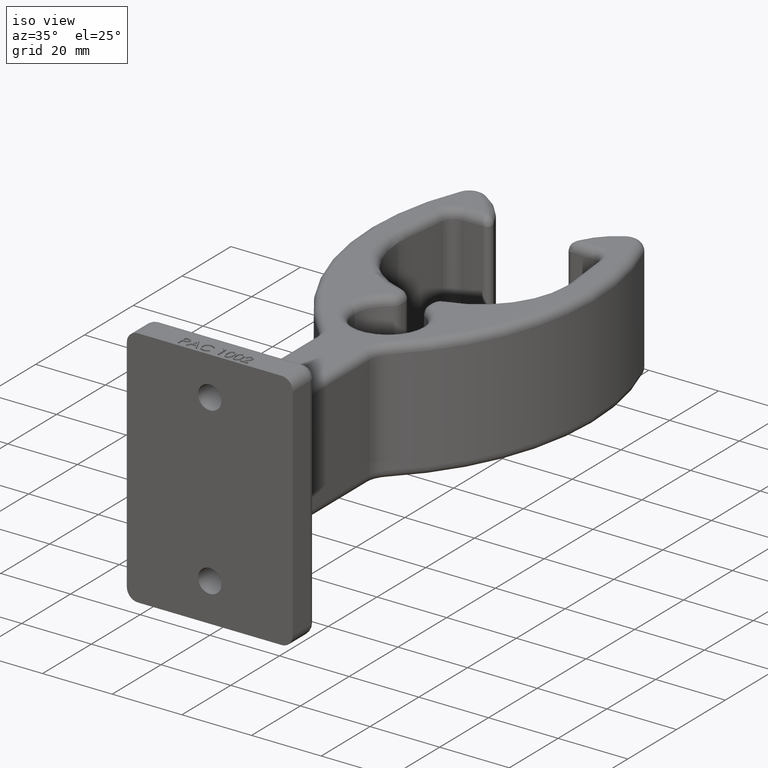
[diagram: clean part render]
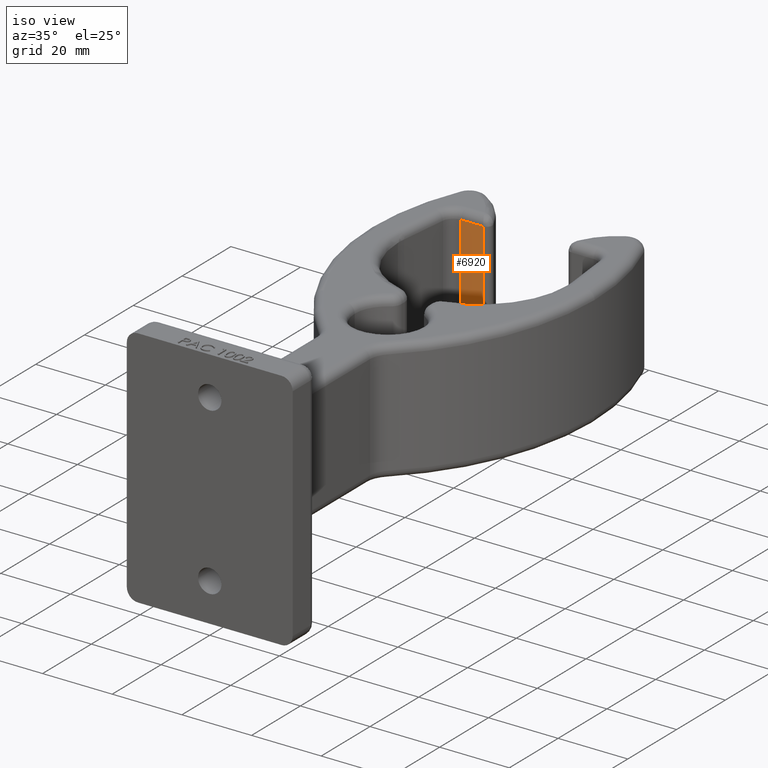
[diagram: same view with one face highlighted and labeled with its STEP entity id]
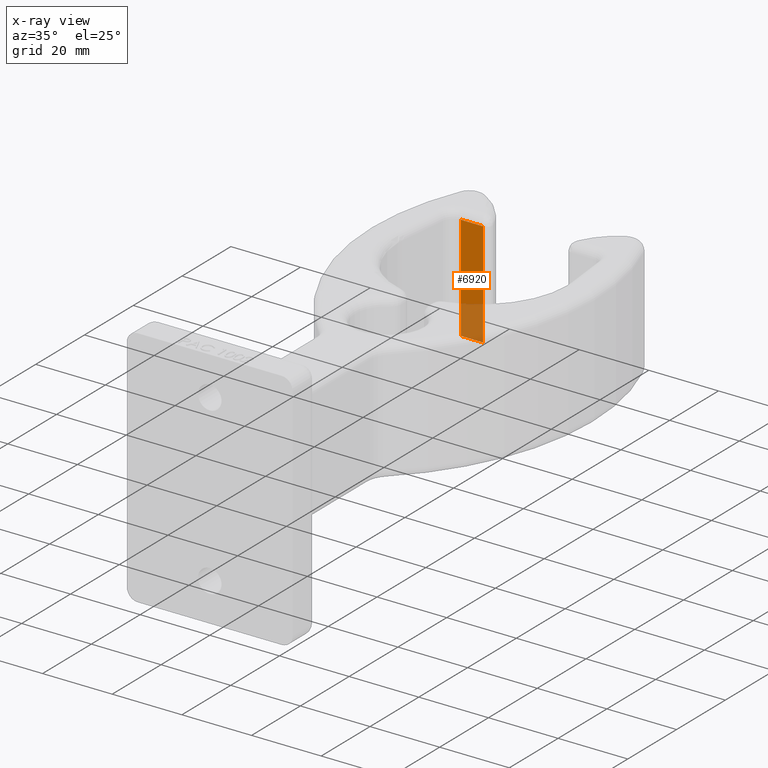
[diagram: x-ray of the same camera — body ghosted, the highlighted face saturated]
A machine part, iso view. The second image highlights one B-rep face of the part: STEP entity #6920.
The next image is the same camera in x-ray: the body ghosted, the highlighted face saturated — about 30% of this face is hidden behind the body in this view.
In plain terms, the highlighted planar face has unit normal (0, 1, -0).
Its self-contained STEP definition (entity closure, byte-faithful):
#550 = VERTEX_POINT ( 'NONE', #3985 ) ;
#969 = VECTOR ( 'NONE', #2479, 39.37007874015748100 ) ;
#1422 = ORIENTED_EDGE ( 'NONE', *, *, #6257, .F. ) ;
#1751 = PLANE ( 'NONE',  #13043 ) ;
#2068 = CARTESIAN_POINT ( 'NONE',  ( -0.7500000000000003300, 5.125000000000000000, -0.5937499999999998900 ) ) ;
#2479 = DIRECTION ( 'NONE',  ( -1.000000000000000000, -0.0000000000000000000, -0.0000000000000000000 ) ) ;
#2842 = DIRECTION ( 'NONE',  ( 0.0000000000000000000, 1.000000000000000000, -0.0000000000000000000 ) ) ;
#2926 = ORIENTED_EDGE ( 'NONE', *, *, #4457, .T. ) ;
#3221 = DIRECTION ( 'NONE',  ( 1.000000000000000000, 0.0000000000000000000, 0.0000000000000000000 ) ) ;
#3748 = ORIENTED_EDGE ( 'NONE', *, *, #4234, .T. ) ;
#3985 = CARTESIAN_POINT ( 'NONE',  ( -0.7500000000000003300, 5.125000000000000000, 0.5937500000000000000 ) ) ;
#4234 = EDGE_CURVE ( 'NONE', #10530, #550, #12705, .T. ) ;
#4282 = DIRECTION ( 'NONE',  ( -0.0000000000000000000, -0.0000000000000000000, -1.000000000000000000 ) ) ;
#4339 = VECTOR ( 'NONE', #4282, 39.37007874015748100 ) ;
#4457 = EDGE_CURVE ( 'NONE', #550, #4511, #8339, .T. ) ;
#4511 = VERTEX_POINT ( 'NONE', #2068 ) ;
#5950 = CARTESIAN_POINT ( 'NONE',  ( -0.5000000000000003300, 5.125000000000000000, 0.5937500000000000000 ) ) ;
#6257 = EDGE_CURVE ( 'NONE', #10530, #8510, #10222, .T. ) ;
#6296 = EDGE_CURVE ( 'NONE', #4511, #8510, #12800, .T. ) ;
#6372 = DIRECTION ( 'NONE',  ( -0.0000000000000000000, -0.0000000000000000000, -1.000000000000000000 ) ) ;
#6851 = ORIENTED_EDGE ( 'NONE', *, *, #6296, .T. ) ;
#6920 = ADVANCED_FACE ( 'NONE', ( #8619 ), #1751, .F. ) ;
#7528 = CARTESIAN_POINT ( 'NONE',  ( -0.5000000000000003300, 5.125000000000000000, 0.6875000000000000000 ) ) ;
#7999 = VECTOR ( 'NONE', #6372, 39.37007874015748100 ) ;
#8266 = CARTESIAN_POINT ( 'NONE',  ( -0.5000000000000003300, 5.125000000000000000, 0.6875000000000000000 ) ) ;
#8339 = LINE ( 'NONE', #12984, #7999 ) ;
#8510 = VERTEX_POINT ( 'NONE', #9220 ) ;
#8619 = FACE_OUTER_BOUND ( 'NONE', #10583, .T. ) ;
#9220 = CARTESIAN_POINT ( 'NONE',  ( -0.5000000000000003300, 5.125000000000000000, -0.5937499999999998900 ) ) ;
#9806 = CARTESIAN_POINT ( 'NONE',  ( -0.5000000000000003300, 5.125000000000000000, -0.5937499999999998900 ) ) ;
#9844 = VECTOR ( 'NONE', #3221, 39.37007874015748100 ) ;
#10171 = CARTESIAN_POINT ( 'NONE',  ( -0.7500000000000004400, 5.125000000000000000, 0.5937500000000000000 ) ) ;
#10222 = LINE ( 'NONE', #7528, #4339 ) ;
#10530 = VERTEX_POINT ( 'NONE', #5950 ) ;
#10537 = DIRECTION ( 'NONE',  ( 0.0000000000000000000, 0.0000000000000000000, 1.000000000000000000 ) ) ;
#10583 = EDGE_LOOP ( 'NONE', ( #2926, #6851, #1422, #3748 ) ) ;
#12705 = LINE ( 'NONE', #10171, #969 ) ;
#12800 = LINE ( 'NONE', #9806, #9844 ) ;
#12984 = CARTESIAN_POINT ( 'NONE',  ( -0.7500000000000003300, 5.125000000000000000, 0.6875000000000000000 ) ) ;
#13043 = AXIS2_PLACEMENT_3D ( 'NONE', #8266, #2842, #10537 ) ;